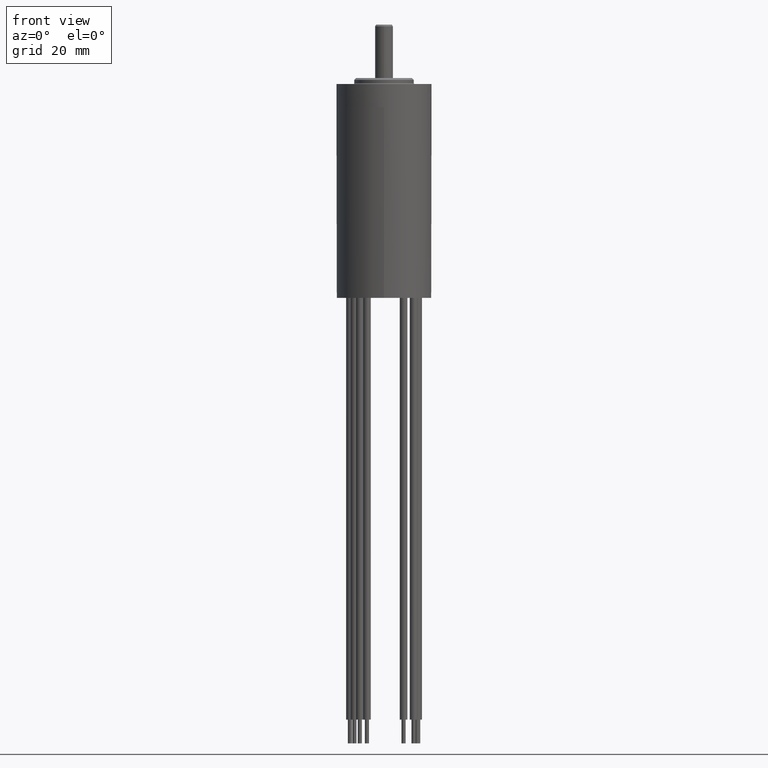
[diagram: clean part render]
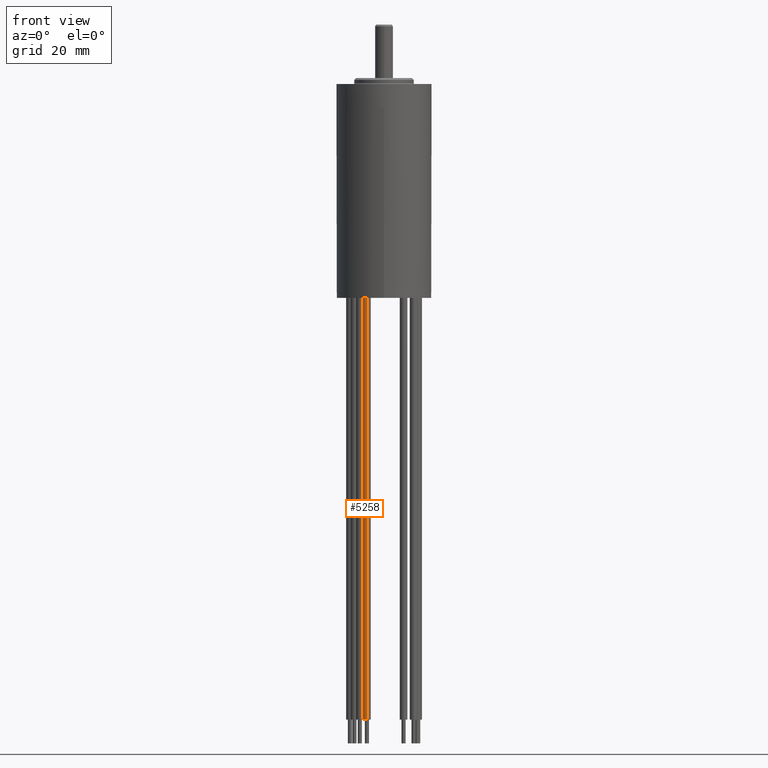
[diagram: same view with one face highlighted and labeled with its STEP entity id]
A machine part, front view. The second image highlights one B-rep face of the part: STEP entity #5258.
In plain terms, the highlighted cylindrical surface (edge-blend (fillet) strip) has radius 0.65 mm, axis along (0, 0, 1).
Its self-contained STEP definition (entity closure, byte-faithful):
#718=CARTESIAN_POINT('',(-2.875E0,-4.979646071761E0,2.6E0));
#719=DIRECTION('',(0.E0,0.E0,1.E0));
#720=DIRECTION('',(0.E0,1.E0,0.E0));
#721=AXIS2_PLACEMENT_3D('',#718,#719,#720);
#1555=DIRECTION('',(0.E0,0.E0,-1.E0));
#1556=VECTOR('',#1555,7.46E1);
#1557=CARTESIAN_POINT('',(-2.875E0,-4.329646071761E0,2.6E0));
#1558=LINE('',#1557,#1556);
#1559=DIRECTION('',(0.E0,0.E0,1.E0));
#1560=VECTOR('',#1559,7.46E1);
#1561=CARTESIAN_POINT('',(-2.875E0,-5.629646071761E0,-7.2E1));
#1562=LINE('',#1561,#1560);
#1563=CARTESIAN_POINT('',(-2.875E0,-4.979646071761E0,-7.2E1));
#1564=DIRECTION('',(0.E0,0.E0,1.E0));
#1565=DIRECTION('',(0.E0,1.E0,0.E0));
#1566=AXIS2_PLACEMENT_3D('',#1563,#1564,#1565);
#3066=CARTESIAN_POINT('',(-2.875E0,-4.329646071761E0,-7.2E1));
#3067=CARTESIAN_POINT('',(-2.875E0,-5.629646071761E0,-7.2E1));
#3068=VERTEX_POINT('',#3066);
#3069=VERTEX_POINT('',#3067);
#3441=CARTESIAN_POINT('',(-2.875E0,-4.329646071761E0,2.6E0));
#3442=CARTESIAN_POINT('',(-2.875E0,-5.629646071761E0,2.6E0));
#3443=VERTEX_POINT('',#3441);
#3444=VERTEX_POINT('',#3442);
#5244=CARTESIAN_POINT('',(-2.875E0,-4.979646071761E0,-7.3492E1));
#5245=DIRECTION('',(0.E0,0.E0,1.E0));
#5246=DIRECTION('',(0.E0,1.E0,0.E0));
#5247=AXIS2_PLACEMENT_3D('',#5244,#5245,#5246);
#5248=CYLINDRICAL_SURFACE('',#5247,6.5E-1);
#5249=ORIENTED_EDGE('',*,*,#4370,.T.);
#5251=ORIENTED_EDGE('',*,*,#5250,.F.);
#5253=ORIENTED_EDGE('',*,*,#5252,.F.);
#5255=ORIENTED_EDGE('',*,*,#5254,.F.);
#5256=EDGE_LOOP('',(#5249,#5251,#5253,#5255));
#5257=FACE_OUTER_BOUND('',#5256,.F.);
#5258=ADVANCED_FACE('',(#5257),#5248,.T.);
#722=CIRCLE('',#721,6.5E-1);
#1567=CIRCLE('',#1566,6.5E-1);
#4370=EDGE_CURVE('',#3443,#3444,#722,.T.);
#5250=EDGE_CURVE('',#3069,#3444,#1562,.T.);
#5252=EDGE_CURVE('',#3068,#3069,#1567,.T.);
#5254=EDGE_CURVE('',#3443,#3068,#1558,.T.);